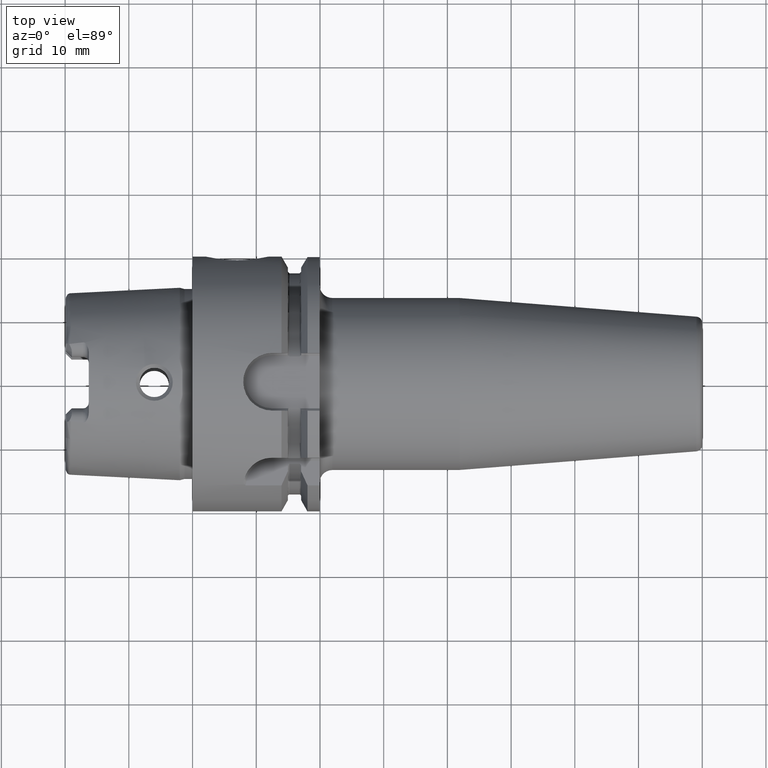
[diagram: clean part render]
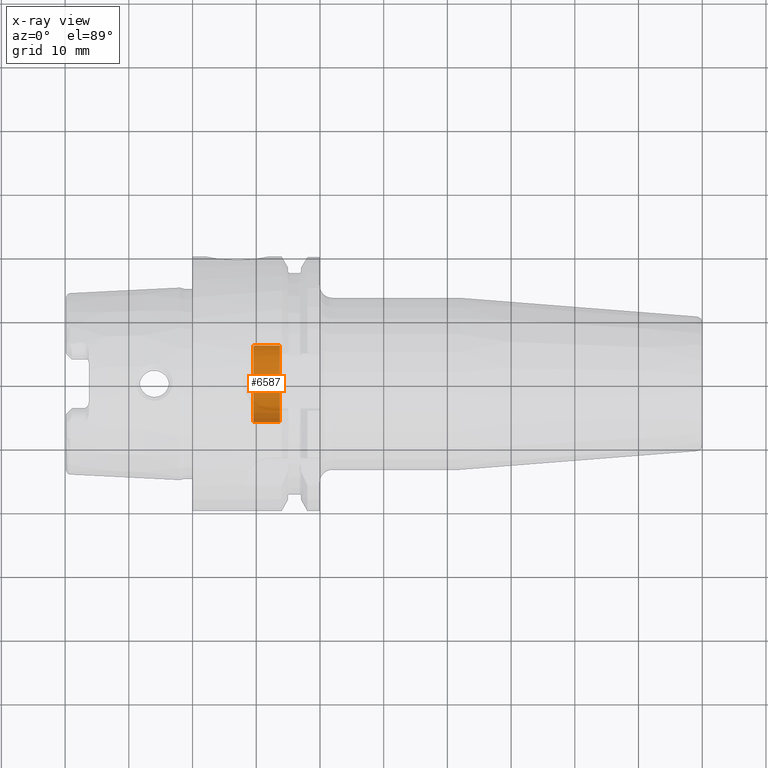
[diagram: x-ray — body ghosted, one internal face saturated and labeled with its STEP entity id]
A machine part, top view, then the same camera in x-ray: the body is ghosted and one INTERNAL B-rep face — a face not visible from any outside direction — is saturated and labeled: STEP entity #6587.
In plain terms, the highlighted cylindrical surface (partial cylindrical patch) has radius 6 mm, axis along (-1, 0, 0).
Its self-contained STEP definition (entity closure, byte-faithful):
#6536=CARTESIAN_POINT('',(1.37E1,0.E0,0.E0));
#6537=DIRECTION('',(-1.E0,0.E0,0.E0));
#6538=DIRECTION('',(0.E0,1.E0,0.E0));
#6539=AXIS2_PLACEMENT_3D('',#6536,#6537,#6538);
#6541=CARTESIAN_POINT('',(9.5625E0,0.E0,0.E0));
#6542=DIRECTION('',(1.E0,0.E0,0.E0));
#6543=DIRECTION('',(0.E0,-1.E0,0.E0));
#6544=AXIS2_PLACEMENT_3D('',#6541,#6542,#6543);
#6546=DIRECTION('',(1.E0,0.E0,0.E0));
#6547=VECTOR('',#6546,4.1375E0);
#6548=CARTESIAN_POINT('',(9.5625E0,6.E0,0.E0));
#6549=LINE('',#6548,#6547);
#6555=DIRECTION('',(1.E0,0.E0,0.E0));
#6556=VECTOR('',#6555,4.1375E0);
#6557=CARTESIAN_POINT('',(9.5625E0,-6.E0,0.E0));
#6558=LINE('',#6557,#6556);
#6564=CARTESIAN_POINT('',(9.5625E0,6.E0,0.E0));
#6565=CARTESIAN_POINT('',(1.37E1,6.E0,0.E0));
#6566=VERTEX_POINT('',#6564);
#6567=VERTEX_POINT('',#6565);
#6568=CARTESIAN_POINT('',(9.5625E0,-6.E0,0.E0));
#6569=CARTESIAN_POINT('',(1.37E1,-6.E0,0.E0));
#6570=VERTEX_POINT('',#6568);
#6571=VERTEX_POINT('',#6569);
#6572=CARTESIAN_POINT('',(1.851760861489E1,0.E0,0.E0));
#6573=DIRECTION('',(-1.E0,0.E0,0.E0));
#6574=DIRECTION('',(0.E0,1.E0,0.E0));
#6575=AXIS2_PLACEMENT_3D('',#6572,#6573,#6574);
#6576=CYLINDRICAL_SURFACE('',#6575,6.E0);
#6578=ORIENTED_EDGE('',*,*,#6577,.T.);
#6580=ORIENTED_EDGE('',*,*,#6579,.T.);
#6582=ORIENTED_EDGE('',*,*,#6581,.F.);
#6584=ORIENTED_EDGE('',*,*,#6583,.T.);
#6585=EDGE_LOOP('',(#6578,#6580,#6582,#6584));
#6586=FACE_OUTER_BOUND('',#6585,.F.);
#6587=ADVANCED_FACE('',(#6586),#6576,.F.);
#6540=CIRCLE('',#6539,6.E0);
#6545=CIRCLE('',#6544,6.E0);
#6577=EDGE_CURVE('',#6566,#6567,#6549,.T.);
#6579=EDGE_CURVE('',#6567,#6571,#6540,.T.);
#6581=EDGE_CURVE('',#6570,#6571,#6558,.T.);
#6583=EDGE_CURVE('',#6570,#6566,#6545,.T.);